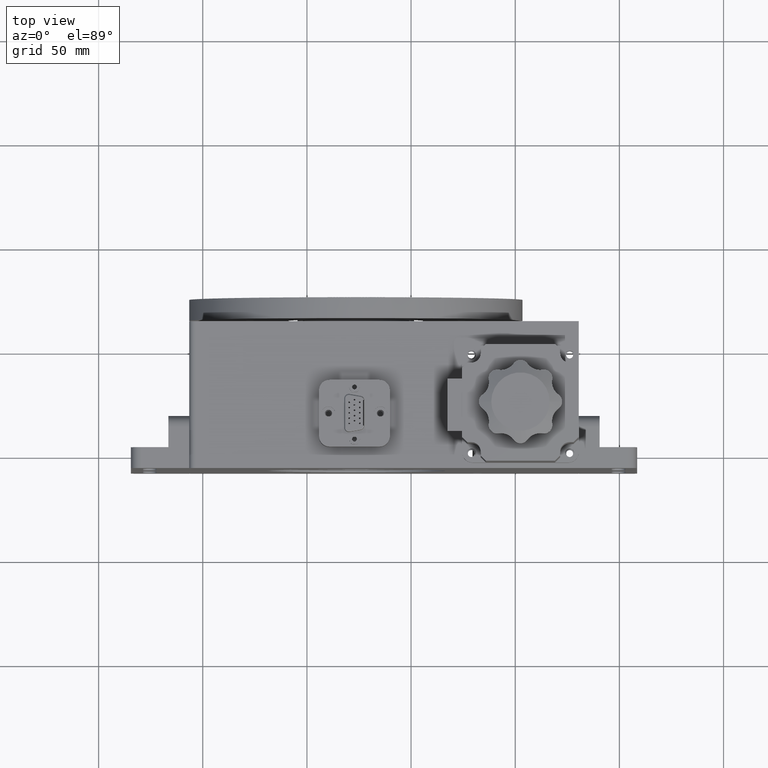
[diagram: clean part render]
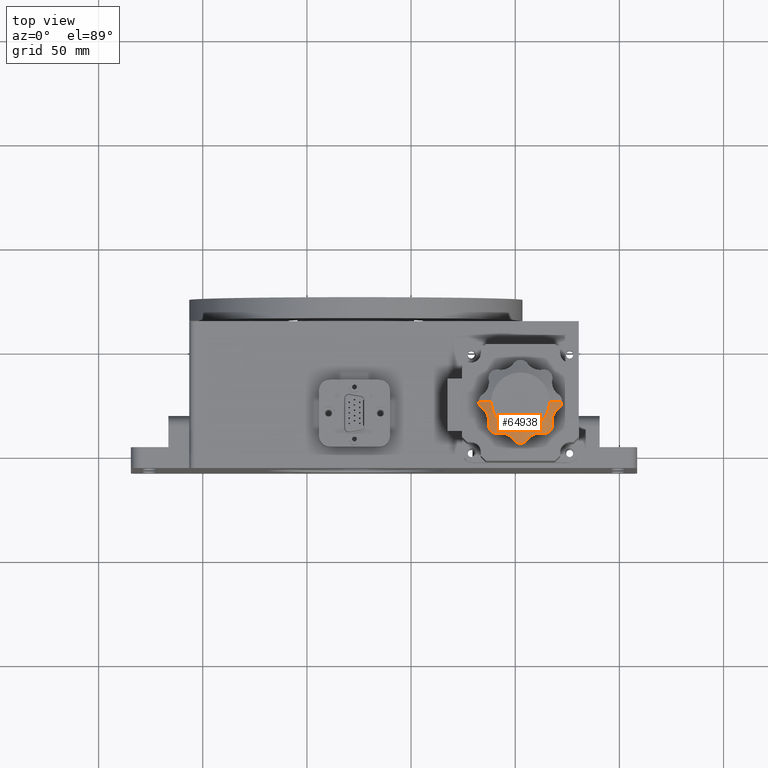
[diagram: same view with one face highlighted and labeled with its STEP entity id]
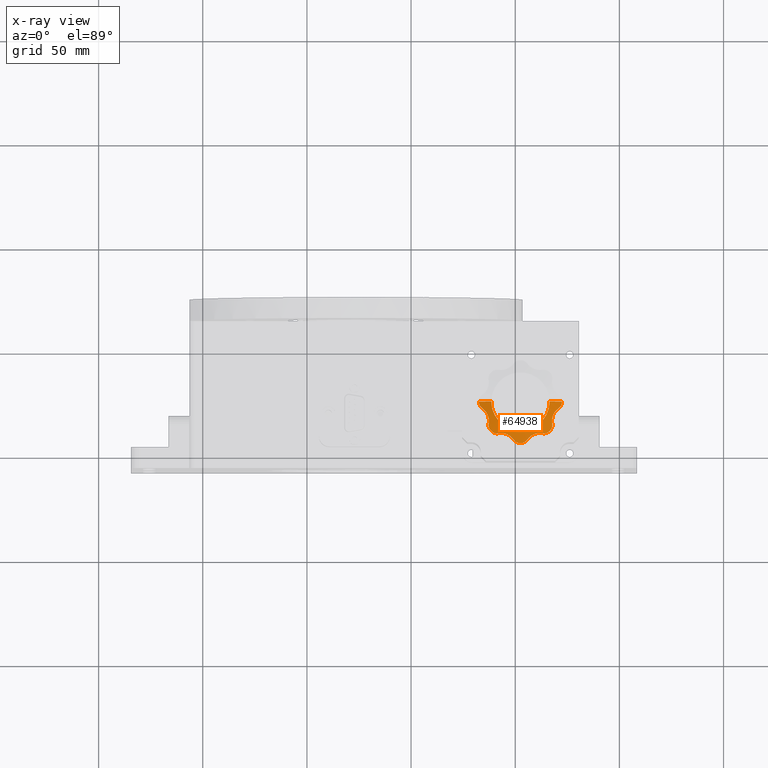
[diagram: x-ray of the same camera — body ghosted, the highlighted face saturated]
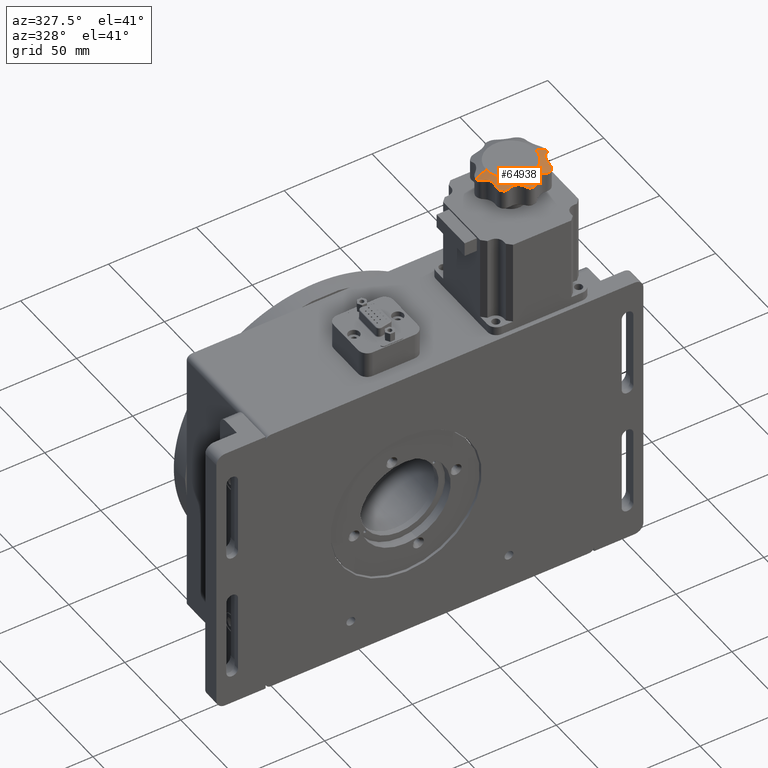
[diagram: same view with one face highlighted and labeled with its STEP entity id]
A machine part, top view. The second image highlights one B-rep face of the part: STEP entity #64938.
The next image is the same camera in x-ray: the body ghosted, the highlighted face saturated — about 0% of this face is hidden behind the body in this view.
A second angle (auxiliary view) of the same face is appended — the face is thin or edge-on in the first view.
In plain terms, the highlighted conical surface has half-angle 63 deg.
Its self-contained STEP definition (entity closure, byte-faithful):
#84 = ORIENTED_EDGE ( 'NONE', *, *, #70561, .T. ) ;
#466 = CARTESIAN_POINT ( 'NONE',  ( 270.3281158404551000, 19.39641639276948800, 157.6680802084595100 ) ) ;
#549 = CARTESIAN_POINT ( 'NONE',  ( 250.5683469493854100, 3.466314216858679600, 156.9340889782052400 ) ) ;
#928 = B_SPLINE_CURVE_WITH_KNOTS ( 'NONE', 3,
 ( #66019, #24842, #90866, #41505, #99130, #49758 ),
 .UNSPECIFIED., .F., .F.,
 ( 4, 2, 4 ),
 ( 2.128886231745767800E-007, 0.001425860909439196000, 0.002851508930255217500 ),
 .UNSPECIFIED. ) ;
#1180 = CARTESIAN_POINT ( 'NONE',  ( 272.0336857831411500, 21.06834694938507700, 156.9340889782051800 ) ) ;
#1248 = B_SPLINE_CURVE_WITH_KNOTS ( 'NONE', 3,
 ( #24792, #16584, #99084, #49714 ),
 .UNSPECIFIED., .F., .F.,
 ( 4, 4 ),
 ( 2.128886231646564100E-007, 0.0007293649178631349200 ),
 .UNSPECIFIED. ) ;
#1417 = VERTEX_POINT ( 'NONE', #11002 ) ;
#2080 = EDGE_CURVE ( 'NONE', #30171, #84348, #89225, .T. ) ;
#2278 = CARTESIAN_POINT ( 'NONE',  ( 237.3541086075618100, 14.08724364501037500, 157.9806272895485500 ) ) ;
#2279 = CARTESIAN_POINT ( 'NONE',  ( 237.4072183333234100, 10.33045380898519400, 156.8941526861525800 ) ) ;
#2401 = DIRECTION ( 'NONE',  ( -1.000000000000000000, 1.395605930821559500E-015, 0.0000000000000000000 ) ) ;
#2973 = EDGE_CURVE ( 'NONE', #49162, #58882, #8648, .T. ) ;
#3842 = ORIENTED_EDGE ( 'NONE', *, *, #94560, .T. ) ;
#4956 = CIRCLE ( 'NONE', #17943, 19.88783151651546500 ) ;
#5450 = CARTESIAN_POINT ( 'NONE',  ( 241.6550428353375300, 7.707419607014321300, 157.3812778587599400 ) ) ;
#5538 = CARTESIAN_POINT ( 'NONE',  ( 261.4127563549890900, 7.854108607561572700, 157.9806272895485200 ) ) ;
#5674 = CARTESIAN_POINT ( 'NONE',  ( 234.0179699953486900, 19.85505542291085800, 157.3812778788825100 ) ) ;
#6301 = CARTESIAN_POINT ( 'NONE',  ( 245.3192696202594600, 7.544932438126595600, 158.2519293113119300 ) ) ;
#7551 = CARTESIAN_POINT ( 'NONE',  ( 266.4999999999999400, 22.99999999999996100, 159.8000000000000100 ) ) ;
#7715 = CARTESIAN_POINT ( 'NONE',  ( 267.8128721839294100, 11.92778674251038700, 157.3055536155509900 ) ) ;
#8348 = CARTESIAN_POINT ( 'NONE',  ( 267.6419160565792500, 14.23945443920680100, 158.0234977601906200 ) ) ;
#8458 = ORIENTED_EDGE ( 'NONE', *, *, #48317, .F. ) ;
#8648 = B_SPLINE_CURVE_WITH_KNOTS ( 'NONE', 3,
 ( #10177, #59602, #100664, #67849, #18505, #76128, #26719, #84478, #35069, #92718, #43338, #101000, #51636, #2278, #59954, #10527, #68192, #18841 ),
 .UNSPECIFIED., .F., .F.,
 ( 4, 2, 2, 2, 2, 2, 2, 2, 4 ),
 ( 2.564491608561236400E-007, 0.002139081010340450900, 0.003208493290930257100, 0.004277905571520062400, 0.004812611711814981600, 0.005347317852109899000, 0.006416730132699735600, 0.007486142413289570400, 0.008555554693879407000 ),
 .UNSPECIFIED. ) ;
#8671 = CARTESIAN_POINT ( 'NONE',  ( 237.1862915010153500, 11.68629150101510200, 157.2321513908461800 ) ) ;
#8732 = EDGE_CURVE ( 'NONE', #29404, #100746, #81324, .T. ) ;
#8770 = CARTESIAN_POINT ( 'NONE',  ( 251.4516725317936300, 3.139817424084173900, 156.8000000000000100 ) ) ;
#9414 = CARTESIAN_POINT ( 'NONE',  ( 272.3601825759157600, 21.95167253179344200, 156.8000000000000100 ) ) ;
#9954 = DIRECTION ( 'NONE',  ( 1.163031447553805800E-017, 1.979074067922844300E-017, 1.000000000000000000 ) ) ;
#10177 = CARTESIAN_POINT ( 'NONE',  ( 234.2031295973081300, 19.72518911183561500, 157.4624876279491400 ) ) ;
#10439 = VERTEX_POINT ( 'NONE', #53851 ) ;
#10527 = CARTESIAN_POINT ( 'NONE',  ( 237.3411064105323800, 13.05108196027704000, 157.6957182112121800 ) ) ;
#10528 = CARTESIAN_POINT ( 'NONE',  ( 237.7154507632943100, 9.698009686639464300, 156.8000000000000100 ) ) ;
#11002 = CARTESIAN_POINT ( 'NONE',  ( 253.5483274682062200, 3.139817424084173900, 156.8000000000000100 ) ) ;
#13437 = CARTESIAN_POINT ( 'NONE',  ( 256.6286578459161100, 5.761811970802274800, 157.9076968662359400 ) ) ;
#13668 = VERTEX_POINT ( 'NONE', #21518 ) ;
#13796 = CARTESIAN_POINT ( 'NONE',  ( 262.4489180397224600, 7.841106410532091800, 157.6957182112122400 ) ) ;
#13832 = CIRCLE ( 'NONE', #51684, 19.88783151651546500 ) ;
#14032 = EDGE_CURVE ( 'NONE', #52963, #13668, #13832, .T. ) ;
#14169 = VERTEX_POINT ( 'NONE', #79470 ) ;
#14453 = ORIENTED_EDGE ( 'NONE', *, *, #46286, .T. ) ;
#14493 = DIRECTION ( 'NONE',  ( -1.163031447553805800E-017, -1.979074067922844300E-017, -1.000000000000000000 ) ) ;
#14572 = CARTESIAN_POINT ( 'NONE',  ( 246.1552860198934200, 7.227545348177479000, 158.2715224530975600 ) ) ;
#16000 = CARTESIAN_POINT ( 'NONE',  ( 267.7534821223591700, 12.37779984988907100, 157.4624876279491200 ) ) ;
#16276 = B_SPLINE_CURVE_WITH_KNOTS ( 'NONE', 3,
 ( #95387, #30126, #87820, #38501, #96112, #46709, #104372, #55037, #5674, #63370 ),
 .UNSPECIFIED., .F., .F.,
 ( 4, 2, 2, 2, 4 ),
 ( 1.845941822922709500E-006, 0.0007127976259173474000, 0.001423749310011772100, 0.002134700994106196900, 0.002845652678200621700 ),
 .UNSPECIFIED. ) ;
#16454 = CARTESIAN_POINT ( 'NONE',  ( 253.7791599767739100, 3.202505666033148100, 156.8256971240977000 ) ) ;
#16584 = CARTESIAN_POINT ( 'NONE',  ( 237.2064402719370800, 12.14946320855016500, 157.3792437131486400 ) ) ;
#16644 = CARTESIAN_POINT ( 'NONE',  ( 267.9246518518026500, 15.70787927955915800, 158.2413483650830100 ) ) ;
#16911 = ORIENTED_EDGE ( 'NONE', *, *, #30244, .T. ) ;
#17825 = CARTESIAN_POINT ( 'NONE',  ( 270.7968704026918700, 19.72518911183567200, 157.4624876279491400 ) ) ;
#17943 = AXIS2_PLACEMENT_3D ( 'NONE', #23866, #81635, #32187 ) ;
#18505 = CARTESIAN_POINT ( 'NONE',  ( 236.1320007452000900, 17.75655400316219000, 158.1777367299795000 ) ) ;
#18841 = CARTESIAN_POINT ( 'NONE',  ( 237.2465178776408300, 12.37779984988898000, 157.4624876279491200 ) ) ;
#19587 = CARTESIAN_POINT ( 'NONE',  ( 238.4999999999999700, 23.00000000000000000, 159.8000000000000100 ) ) ;
#20554 = EDGE_CURVE ( 'NONE', #90372, #10439, #49811, .T. ) ;
#21518 = CARTESIAN_POINT ( 'NONE',  ( 232.6398174240842100, 21.95167253179350200, 156.8000000000000100 ) ) ;
#21612 = CARTESIAN_POINT ( 'NONE',  ( 239.1980096866400300, 8.215450763293841200, 156.8000000000000100 ) ) ;
#21702 = CARTESIAN_POINT ( 'NONE',  ( 257.7434459968373500, 6.632000745200027600, 158.1777367299795300 ) ) ;
#22064 = CARTESIAN_POINT ( 'NONE',  ( 263.1222001501104700, 7.746517877640557400, 157.4624876279491200 ) ) ;
#22818 = CARTESIAN_POINT ( 'NONE',  ( 246.6405601950597200, 6.991556292023289200, 158.2479042270338700 ) ) ;
#23662 = CARTESIAN_POINT ( 'NONE',  ( 267.6796206809577300, 12.79861524436923000, 157.6159028688819900 ) ) ;
#23866 = CARTESIAN_POINT ( 'NONE',  ( 252.4999999999999400, 22.99999999999997900, 156.8000000000000100 ) ) ;
#24431 = EDGE_CURVE ( 'NONE', #45550, #45501, #104597, .T. ) ;
#24675 = CARTESIAN_POINT ( 'NONE',  ( 254.4216301049006000, 3.484064295957285800, 156.9420244716242200 ) ) ;
#24792 = CARTESIAN_POINT ( 'NONE',  ( 237.2465178776408300, 12.37779984988898000, 157.4624876279491200 ) ) ;
#24842 = CARTESIAN_POINT ( 'NONE',  ( 263.5686470744148000, 7.668157594792158500, 157.2997279871319200 ) ) ;
#24852 = CARTESIAN_POINT ( 'NONE',  ( 268.2257542250001700, 16.55743076933256600, 158.2756893889788600 ) ) ;
#26695 = B_SPLINE_CURVE_WITH_KNOTS ( 'NONE', 3,
 ( #41607, #82718, #49864, #549, #58177, #8770 ),
 .UNSPECIFIED., .F., .F.,
 ( 4, 2, 4 ),
 ( 2.561101793867423200E-007, 0.001425904833248735200, 0.002851553556318083300 ),
 .UNSPECIFIED. ) ;
#26719 = CARTESIAN_POINT ( 'NONE',  ( 236.6540445331571000, 16.83165703847988900, 158.2712212983298900 ) ) ;
#26720 = CARTESIAN_POINT ( 'NONE',  ( 237.1862915010153500, 11.51702634573043400, 157.1809031888826100 ) ) ;
#26759 = CARTESIAN_POINT ( 'NONE',  ( 252.4999999999999400, 22.99999999999997900, 156.8000000000000100 ) ) ;
#26901 = DIRECTION ( 'NONE',  ( -1.000000000000000000, 1.486905836551550700E-015, 0.0000000000000000000 ) ) ;
#29404 = VERTEX_POINT ( 'NONE', #83685 ) ;
#29911 = CARTESIAN_POINT ( 'NONE',  ( 239.4055601977146900, 8.096554813315842500, 156.8256971238458000 ) ) ;
#29989 = CARTESIAN_POINT ( 'NONE',  ( 258.6683429615196700, 7.154044533156910500, 158.2712212983298300 ) ) ;
#30126 = CARTESIAN_POINT ( 'NONE',  ( 232.7025056660331500, 21.72084002322584300, 156.8256971240977300 ) ) ;
#30171 = VERTEX_POINT ( 'NONE', #93475 ) ;
#30244 = EDGE_CURVE ( 'NONE', #94276, #52963, #53176, .T. ) ;
#31118 = CARTESIAN_POINT ( 'NONE',  ( 247.2538653185763200, 6.633844164480859000, 158.1782248456928800 ) ) ;
#31821 = CARTESIAN_POINT ( 'NONE',  ( 252.4999999999999400, 22.99999999999997900, 156.8000000000000100 ) ) ;
#31875 = ORIENTED_EDGE ( 'NONE', *, *, #20554, .T. ) ;
#31975 = CARTESIAN_POINT ( 'NONE',  ( 249.2251891118359300, 4.703129597308040000, 157.4624876279491200 ) ) ;
#31995 = CARTESIAN_POINT ( 'NONE',  ( 267.6419160565791900, 13.65878121155505900, 157.8681554785692400 ) ) ;
#32187 = DIRECTION ( 'NONE',  ( -1.000000000000000000, 1.395605930821559500E-015, 0.0000000000000000000 ) ) ;
#32196 = CARTESIAN_POINT ( 'NONE',  ( 267.2845492367056900, 9.698009686639560200, 156.8000000000000100 ) ) ;
#32396 = DIRECTION ( 'NONE',  ( 0.8910065241883690100, -1.170628239925356600E-015, -0.4539904997395444700 ) ) ;
#33014 = CARTESIAN_POINT ( 'NONE',  ( 255.0039435760363900, 3.871994495727039400, 157.1045522205684800 ) ) ;
#33096 = AXIS2_PLACEMENT_3D ( 'NONE', #104569, #14493, #26901 ) ;
#33195 = CARTESIAN_POINT ( 'NONE',  ( 268.6313373298944500, 17.37017332738011500, 158.2291772330564200 ) ) ;
#33250 = CARTESIAN_POINT ( 'NONE',  ( 251.4516725317936300, 3.139817424084173900, 156.8000000000000100 ) ) ;
#34681 = CARTESIAN_POINT ( 'NONE',  ( 238.4999999999999700, 23.00000000000000000, 159.8000000000000100 ) ) ;
#35069 = CARTESIAN_POINT ( 'NONE',  ( 236.9241712139589700, 16.16361874730979100, 158.2667672571537600 ) ) ;
#35070 = CARTESIAN_POINT ( 'NONE',  ( 237.1862915010153500, 11.68629150101510200, 157.2321513908461800 ) ) ;
#35106 = DIRECTION ( 'NONE',  ( -1.000000000000000000, 1.395605930821559500E-015, 0.0000000000000000000 ) ) ;
#36274 = DIRECTION ( 'NONE',  ( 1.163031447553805800E-017, 1.979074067922844300E-017, 1.000000000000000000 ) ) ;
#36787 = B_SPLINE_CURVE_WITH_KNOTS ( 'NONE', 3,
 ( #32196, #65042, #40552, #98165, #48778, #106418, #57104, #7715, #65389, #16000 ),
 .UNSPECIFIED., .F., .F.,
 ( 4, 2, 2, 2, 4 ),
 ( 1.845941825706599700E-006, 0.0007127976189506617100, 0.001423749296075616700, 0.002134700973200572000, 0.002845652650325527100 ),
 .UNSPECIFIED. ) ;
#38269 = CARTESIAN_POINT ( 'NONE',  ( 240.0589471918461900, 7.841351847061058100, 156.9420244698525800 ) ) ;
#38356 = CARTESIAN_POINT ( 'NONE',  ( 259.3363812526897000, 7.424171213958848300, 158.2667672571537300 ) ) ;
#38501 = CARTESIAN_POINT ( 'NONE',  ( 232.9840642959574100, 21.07836989509897700, 156.9420244716242800 ) ) ;
#39132 = CARTESIAN_POINT ( 'NONE',  ( 242.5467025509394400, 7.863923557910202300, 157.7063472167102400 ) ) ;
#39491 = CARTESIAN_POINT ( 'NONE',  ( 248.0925080336171800, 5.987966939783357000, 157.9806272532480900 ) ) ;
#39594 = FACE_OUTER_BOUND ( 'NONE', #100859, .T. ) ;
#40182 = DIRECTION ( 'NONE',  ( -1.000000000000000000, 1.395605930821559500E-015, 0.0000000000000000000 ) ) ;
#40552 = CARTESIAN_POINT ( 'NONE',  ( 267.5014561823628600, 10.11945291401769600, 156.8593759180045900 ) ) ;
#41339 = CARTESIAN_POINT ( 'NONE',  ( 255.4985986984276600, 4.342927178751427400, 157.3055536226903800 ) ) ;
#41505 = CARTESIAN_POINT ( 'NONE',  ( 264.9465167809883600, 7.821713293055509600, 156.9340889378582900 ) ) ;
#41518 = CARTESIAN_POINT ( 'NONE',  ( 269.1242405794952200, 18.11508061880188300, 158.1059522471157100 ) ) ;
#41607 = CARTESIAN_POINT ( 'NONE',  ( 249.2251891118359300, 4.703129597308040000, 157.4624876279491200 ) ) ;
#42676 = ORIENTED_EDGE ( 'NONE', *, *, #81488, .T. ) ;
#43230 = CARTESIAN_POINT ( 'NONE',  ( 255.7748108881641300, 4.703129597308032900, 157.4624876279491200 ) ) ;
#43338 = CARTESIAN_POINT ( 'NONE',  ( 237.0869973284470400, 15.65260713818909400, 158.2338197077304200 ) ) ;
#43339 = CARTESIAN_POINT ( 'NONE',  ( 237.1969872600750200, 11.34664911320746600, 157.1329612935858800 ) ) ;
#43477 = AXIS2_PLACEMENT_3D ( 'NONE', #26759, #84519, #35106 ) ;
#43527 = VERTEX_POINT ( 'NONE', #48814 ) ;
#43855 = ORIENTED_EDGE ( 'NONE', *, *, #57685, .T. ) ;
#45129 = EDGE_CURVE ( 'NONE', #84348, #14169, #36787, .T. ) ;
#45492 = CIRCLE ( 'NONE', #101796, 19.88783151651546500 ) ;
#45501 = VERTEX_POINT ( 'NONE', #63843 ) ;
#45550 = VERTEX_POINT ( 'NONE', #56971 ) ;
#46286 = EDGE_CURVE ( 'NONE', #13668, #49162, #16276, .T. ) ;
#46415 = CARTESIAN_POINT ( 'NONE',  ( 272.3601825759157600, 21.95167253179344200, 156.8000000000000100 ) ) ;
#46474 = CARTESIAN_POINT ( 'NONE',  ( 240.7450130639794300, 7.703902116893528000, 157.1045522164380400 ) ) ;
#46568 = CARTESIAN_POINT ( 'NONE',  ( 259.8473928618104200, 7.586997328446891200, 158.2338197077304800 ) ) ;
#46709 = CARTESIAN_POINT ( 'NONE',  ( 233.3719944957271100, 20.49605642396333800, 157.1045522205684800 ) ) ;
#47348 = CARTESIAN_POINT ( 'NONE',  ( 241.8777998498896400, 7.746517877640456200, 157.4624876279491200 ) ) ;
#47710 = CARTESIAN_POINT ( 'NONE',  ( 248.8159912510279800, 5.246095789160035500, 157.6957180678858800 ) ) ;
#48317 = EDGE_CURVE ( 'NONE', #92203, #43527, #94257, .T. ) ;
#48778 = CARTESIAN_POINT ( 'NONE',  ( 267.7180613030787400, 10.78619092501263100, 156.9914101614185100 ) ) ;
#48814 = CARTESIAN_POINT ( 'NONE',  ( 272.3878315165154600, 22.99999999999995400, 156.8000000000000100 ) ) ;
#49162 = VERTEX_POINT ( 'NONE', #81623 ) ;
#49353 = VERTEX_POINT ( 'NONE', #8671 ) ;
#49589 = CARTESIAN_POINT ( 'NONE',  ( 255.7748108881641300, 4.703129597308032900, 157.4624876279491200 ) ) ;
#49714 = CARTESIAN_POINT ( 'NONE',  ( 237.1862915010153500, 11.68629150101510200, 157.2321513908461800 ) ) ;
#49758 = CARTESIAN_POINT ( 'NONE',  ( 265.8019903133600200, 8.215450763293974400, 156.8000000000000400 ) ) ;
#49771 = CARTESIAN_POINT ( 'NONE',  ( 269.8966530124957300, 19.01410846094755800, 157.8435970462970200 ) ) ;
#49811 = B_SPLINE_CURVE_WITH_KNOTS ( 'NONE', 3,
 ( #86964, #54172, #13437, #71114, #21702, #79424, #29989, #87685, #38356, #95962, #46568, #104236, #54895, #5538, #63231, #13796, #71472, #22064 ),
 .UNSPECIFIED., .F., .F.,
 ( 4, 2, 2, 2, 2, 2, 2, 2, 4 ),
 ( 2.564491608478363300E-007, 0.002139081010340392700, 0.003208493290930166000, 0.004277905571519939300, 0.004812611711814826300, 0.005347317852109714300, 0.006416730132699479700, 0.007486142413289243400, 0.008555554693879008000 ),
 .UNSPECIFIED. ) ;
#49864 = CARTESIAN_POINT ( 'NONE',  ( 249.8060727253907200, 4.006511306011021600, 157.1610719225173500 ) ) ;
#49975 = B_SPLINE_CURVE_WITH_KNOTS ( 'NONE', 3,
 ( #81070, #23662, #81426, #31995 ),
 .UNSPECIFIED., .F., .F.,
 ( 4, 4 ),
 ( 2.131679597239768000E-007, 0.001345775553808589500 ),
 .UNSPECIFIED. ) ;
#50521 = CARTESIAN_POINT ( 'NONE',  ( 271.4934886939890400, 20.30607272539037200, 157.1610719225173200 ) ) ;
#51083 = EDGE_CURVE ( 'NONE', #106020, #58358, #84290, .T. ) ;
#51199 = EDGE_CURVE ( 'NONE', #58358, #53309, #26695, .T. ) ;
#51636 = CARTESIAN_POINT ( 'NONE',  ( 237.2798059235926200, 14.78953390261069400, 158.1234121039777800 ) ) ;
#51637 = CARTESIAN_POINT ( 'NONE',  ( 237.2747135140966700, 10.83219541992859400, 157.0029685174676200 ) ) ;
#51684 = AXIS2_PLACEMENT_3D ( 'NONE', #101123, #51751, #2401 ) ;
#51751 = DIRECTION ( 'NONE',  ( 1.163031447553805800E-017, 1.979074067922844300E-017, 1.000000000000000000 ) ) ;
#52720 = EDGE_CURVE ( 'NONE', #1417, #90372, #55818, .T. ) ;
#52963 = VERTEX_POINT ( 'NONE', #94913 ) ;
#53176 = LINE ( 'NONE', #19587, #69907 ) ;
#53235 = AXIS2_PLACEMENT_3D ( 'NONE', #85623, #36274, #93891 ) ;
#53309 = VERTEX_POINT ( 'NONE', #33250 ) ;
#53851 = CARTESIAN_POINT ( 'NONE',  ( 263.1222001501104700, 7.746517877640557400, 157.4624876279491200 ) ) ;
#54141 = CARTESIAN_POINT ( 'NONE',  ( 241.8777998498896400, 7.746517877640456200, 157.4624876279491200 ) ) ;
#54172 = CARTESIAN_POINT ( 'NONE',  ( 256.1647778136537600, 5.259133075833077000, 157.7063469930233700 ) ) ;
#54803 = CARTESIAN_POINT ( 'NONE',  ( 241.4277867425109000, 7.687127816070410600, 157.3055536155510200 ) ) ;
#54895 = CARTESIAN_POINT ( 'NONE',  ( 260.7104660973888000, 7.779805923592438600, 158.1234121039777000 ) ) ;
#55011 = CARTESIAN_POINT ( 'NONE',  ( 267.2845492367056900, 9.698009686639560200, 156.8000000000000100 ) ) ;
#55037 = CARTESIAN_POINT ( 'NONE',  ( 233.8429271787515200, 20.00140130157203100, 157.3055536226904100 ) ) ;
#55674 = CARTESIAN_POINT ( 'NONE',  ( 244.6337535278848100, 7.718400398364468500, 158.1777368135645900 ) ) ;
#55818 = B_SPLINE_CURVE_WITH_KNOTS ( 'NONE', 3,
 ( #65847, #16454, #74077, #24675, #82441, #33014, #90693, #41339, #98959, #49589 ),
 .UNSPECIFIED., .F., .F.,
 ( 4, 2, 2, 2, 4 ),
 ( 1.845941822919220800E-006, 0.0007127976259173369900, 0.001423749310011754700, 0.002134700994106173000, 0.002845652678200591300 ),
 .UNSPECIFIED. ) ;
#56009 = CIRCLE ( 'NONE', #53235, 13.99999999999998400 ) ;
#56029 = CARTESIAN_POINT ( 'NONE',  ( 249.2251891118359300, 4.703129597308040000, 157.4624876279491200 ) ) ;
#56971 = CARTESIAN_POINT ( 'NONE',  ( 237.7154507632943100, 9.698009686639464300, 156.8000000000000100 ) ) ;
#57104 = CARTESIAN_POINT ( 'NONE',  ( 267.8144938768039100, 11.47334434495738600, 157.1674099899103400 ) ) ;
#57379 = CARTESIAN_POINT ( 'NONE',  ( 267.6419160565791900, 13.65878121155505900, 157.8681554785692400 ) ) ;
#57685 = EDGE_CURVE ( 'NONE', #10439, #30171, #928, .T. ) ;
#58093 = CARTESIAN_POINT ( 'NONE',  ( 270.7968704026918700, 19.72518911183567200, 157.4624876279491400 ) ) ;
#58177 = CARTESIAN_POINT ( 'NONE',  ( 250.9888894286443400, 3.265497551723777600, 156.8515187176439800 ) ) ;
#58358 = VERTEX_POINT ( 'NONE', #31975 ) ;
#58601 = EDGE_CURVE ( 'NONE', #94276, #92203, #56009, .T. ) ;
#58821 = CARTESIAN_POINT ( 'NONE',  ( 272.2345024482762600, 21.48888942864401500, 156.8515187176439600 ) ) ;
#58882 = VERTEX_POINT ( 'NONE', #89181 ) ;
#59385 = CARTESIAN_POINT ( 'NONE',  ( 252.4999999999999400, 22.99999999999997900, 156.8000000000000100 ) ) ;
#59602 = CARTESIAN_POINT ( 'NONE',  ( 234.7591330758330100, 19.33522218634577100, 157.7063469930233200 ) ) ;
#59954 = CARTESIAN_POINT ( 'NONE',  ( 237.3656221684113900, 13.73762914353432800, 157.8936132756212200 ) ) ;
#59955 = CARTESIAN_POINT ( 'NONE',  ( 237.5380400320450500, 10.00770642523899800, 156.8383439934944500 ) ) ;
#62119 = EDGE_CURVE ( 'NONE', #14169, #29404, #49975, .T. ) ;
#63144 = CARTESIAN_POINT ( 'NONE',  ( 241.8777998498896400, 7.746517877640456200, 157.4624876279491200 ) ) ;
#63231 = CARTESIAN_POINT ( 'NONE',  ( 261.7623708564652200, 7.865622168411155400, 157.8936132756212500 ) ) ;
#63370 = CARTESIAN_POINT ( 'NONE',  ( 234.2031295973081300, 19.72518911183561500, 157.4624876279491400 ) ) ;
#63630 = ORIENTED_EDGE ( 'NONE', *, *, #24431, .T. ) ;
#63843 = CARTESIAN_POINT ( 'NONE',  ( 239.1980096866400300, 8.215450763293841200, 156.8000000000000100 ) ) ;
#63986 = CARTESIAN_POINT ( 'NONE',  ( 245.6568951656285000, 7.433540071212283000, 158.2712213111370800 ) ) ;
#64527 = B_SPLINE_CURVE_WITH_KNOTS ( 'NONE', 3,
 ( #21612, #29911, #87585, #38269, #95873, #46474, #104144, #54803, #5450, #63144 ),
 .UNSPECIFIED., .F., .F.,
 ( 4, 2, 2, 2, 4 ),
 ( 1.845941825698996500E-006, 0.0007127976189506741700, 0.001423749296075649200, 0.002134700973200624500, 0.002845652650325599500 ),
 .UNSPECIFIED. ) ;
#64938 = ADVANCED_FACE ( 'NONE', ( #39594 ), #73046, .T. ) ;
#65042 = CARTESIAN_POINT ( 'NONE',  ( 267.4034451866838300, 9.905560197714232000, 156.8256971238456900 ) ) ;
#65389 = CARTESIAN_POINT ( 'NONE',  ( 267.7925803929854900, 12.15504283533700800, 157.3812778587598300 ) ) ;
#65847 = CARTESIAN_POINT ( 'NONE',  ( 253.5483274682062200, 3.139817424084173900, 156.8000000000000100 ) ) ;
#66019 = CARTESIAN_POINT ( 'NONE',  ( 263.1222001501104700, 7.746517877640557400, 157.4624876279491200 ) ) ;
#66030 = CARTESIAN_POINT ( 'NONE',  ( 267.7124330292085100, 14.83985912540859800, 158.1424863418963000 ) ) ;
#67630 = DIRECTION ( 'NONE',  ( -1.000000000000000000, 1.395605930821559500E-015, 0.0000000000000000000 ) ) ;
#67849 = CARTESIAN_POINT ( 'NONE',  ( 235.9288940871960800, 18.04765497597822200, 158.1225106727057200 ) ) ;
#68192 = CARTESIAN_POINT ( 'NONE',  ( 237.3052455625147300, 12.71239274989480900, 157.5844690265437600 ) ) ;
#68451 = ORIENTED_EDGE ( 'NONE', *, *, #8732, .T. ) ;
#69136 = B_SPLINE_CURVE_WITH_KNOTS ( 'NONE', 3,
 ( #35070, #26720, #43339, #101001, #51637, #2279, #59955, #10528 ),
 .UNSPECIFIED., .F., .F.,
 ( 4, 2, 2, 4 ),
 ( 0.0007293649178631349200, 0.001259900920961140900, 0.001790436924059146800, 0.002851508930255163700 ),
 .UNSPECIFIED. ) ;
#69726 = VECTOR ( 'NONE', #32396, 1000.000000000000100 ) ;
#69907 = VECTOR ( 'NONE', #85551, 1000.000000000000100 ) ;
#70561 = EDGE_CURVE ( 'NONE', #45501, #106020, #64527, .T. ) ;
#70887 = ORIENTED_EDGE ( 'NONE', *, *, #14032, .T. ) ;
#71114 = CARTESIAN_POINT ( 'NONE',  ( 257.4523450240212100, 6.428894087195995900, 158.1225106727056900 ) ) ;
#71472 = CARTESIAN_POINT ( 'NONE',  ( 262.7876072501046600, 7.805245562514454800, 157.5844690265437600 ) ) ;
#71517 = CARTESIAN_POINT ( 'NONE',  ( 243.2301630236814000, 7.891358325121508700, 157.9076970187258600 ) ) ;
#71523 = ORIENTED_EDGE ( 'NONE', *, *, #52720, .T. ) ;
#72224 = CARTESIAN_POINT ( 'NONE',  ( 246.3202776612767200, 7.152174172958628300, 158.2667672483696300 ) ) ;
#73046 = CONICAL_SURFACE ( 'NONE', #33096, 13.99999999999998400, 1.099557428756430000 ) ;
#73378 = ORIENTED_EDGE ( 'NONE', *, *, #2080, .T. ) ;
#73621 = ORIENTED_EDGE ( 'NONE', *, *, #62119, .T. ) ;
#74077 = CARTESIAN_POINT ( 'NONE',  ( 253.9997092086567200, 3.284446417491309100, 156.8593759186634900 ) ) ;
#74254 = CARTESIAN_POINT ( 'NONE',  ( 268.0129162508831700, 15.99356804437571200, 158.2616876282444300 ) ) ;
#76128 = CARTESIAN_POINT ( 'NONE',  ( 236.4940734309347800, 17.14916071202334200, 158.2519292569572500 ) ) ;
#76321 = AXIS2_PLACEMENT_3D ( 'NONE', #31821, #89514, #40182 ) ;
#76635 = ORIENTED_EDGE ( 'NONE', *, *, #84784, .T. ) ;
#76837 = ORIENTED_EDGE ( 'NONE', *, *, #51083, .T. ) ;
#79424 = CARTESIAN_POINT ( 'NONE',  ( 258.3508392879761600, 6.994073430934733400, 158.2519292569573100 ) ) ;
#79470 = CARTESIAN_POINT ( 'NONE',  ( 267.7534821223591700, 12.37779984988907100, 157.4624876279491200 ) ) ;
#80554 = CARTESIAN_POINT ( 'NONE',  ( 246.7967531181389500, 6.905969689927237800, 158.2338196571571400 ) ) ;
#81070 = CARTESIAN_POINT ( 'NONE',  ( 267.7534821223591700, 12.37779984988907100, 157.4624876279491200 ) ) ;
#81324 = B_SPLINE_CURVE_WITH_KNOTS ( 'NONE', 3,
 ( #57379, #8348, #66030, #16644, #74254, #24852, #82620, #33195, #90881, #41518, #99143, #49771, #466, #58093 ),
 .UNSPECIFIED., .F., .F.,
 ( 4, 2, 2, 2, 2, 2, 4 ),
 ( 0.001345775553808589500, 0.003148209549154206800, 0.004049426546827010800, 0.004950643544499814400, 0.005851860542172618800, 0.006753077539845422400, 0.008555511535191136200 ),
 .UNSPECIFIED. ) ;
#81426 = CARTESIAN_POINT ( 'NONE',  ( 267.6419160565791900, 13.22529401834009400, 157.7521885518349600 ) ) ;
#81488 = EDGE_CURVE ( 'NONE', #100746, #88083, #97278, .T. ) ;
#81623 = CARTESIAN_POINT ( 'NONE',  ( 234.2031295973081300, 19.72518911183561500, 157.4624876279491400 ) ) ;
#81635 = DIRECTION ( 'NONE',  ( 1.163031447553805800E-017, 1.979074067922844300E-017, 1.000000000000000000 ) ) ;
#82217 = CARTESIAN_POINT ( 'NONE',  ( 266.4999999999999400, 22.99999999999995700, 159.8000000000000100 ) ) ;
#82441 = CARTESIAN_POINT ( 'NONE',  ( 254.6243271327882700, 3.602738441091807500, 156.9914101639428700 ) ) ;
#82620 = CARTESIAN_POINT ( 'NONE',  ( 268.3514672257395000, 16.83720387912066800, 158.2690261800601700 ) ) ;
#82718 = CARTESIAN_POINT ( 'NONE',  ( 249.4854653671178000, 4.332035297112297700, 157.2997281778311800 ) ) ;
#83685 = CARTESIAN_POINT ( 'NONE',  ( 267.6419160565791900, 13.65878121155505900, 157.8681554785692400 ) ) ;
#84290 = B_SPLINE_CURVE_WITH_KNOTS ( 'NONE', 3,
 ( #47348, #39132, #71517, #105003, #55674, #6301, #63986, #14572, #72224, #22818, #80554, #31118, #88819, #39491, #97120, #47710, #105370, #56029 ),
 .UNSPECIFIED., .F., .F.,
 ( 4, 2, 2, 2, 2, 2, 2, 2, 4 ),
 ( 2.131679597202853500E-007, 0.002139037759767450200, 0.003208450055671315900, 0.004277862351575180800, 0.004812568499527113800, 0.005347274647479046000, 0.006416686943382981500, 0.007486099239286917100, 0.008555511535190851700 ),
 .UNSPECIFIED. ) ;
#84348 = VERTEX_POINT ( 'NONE', #55011 ) ;
#84478 = CARTESIAN_POINT ( 'NONE',  ( 236.8608000076688700, 16.33358083552227700, 158.2715224592072600 ) ) ;
#84519 = DIRECTION ( 'NONE',  ( 1.163031447553805800E-017, 1.979074067922844300E-017, 1.000000000000000000 ) ) ;
#84784 = EDGE_CURVE ( 'NONE', #53309, #1417, #4956, .T. ) ;
#85551 = DIRECTION ( 'NONE',  ( -0.8910065241883690100, 1.261775452209668600E-015, -0.4539904997395444700 ) ) ;
#85623 = CARTESIAN_POINT ( 'NONE',  ( 252.4999999999999400, 22.99999999999997900, 159.8000000000000100 ) ) ;
#86964 = CARTESIAN_POINT ( 'NONE',  ( 255.7748108881641300, 4.703129597308032900, 157.4624876279491200 ) ) ;
#87239 = ORIENTED_EDGE ( 'NONE', *, *, #51199, .T. ) ;
#87585 = CARTESIAN_POINT ( 'NONE',  ( 239.6194529140182700, 7.998543817636922300, 156.8593759180047000 ) ) ;
#87685 = CARTESIAN_POINT ( 'NONE',  ( 259.1664191644771900, 7.360800007668722800, 158.2715224592072600 ) ) ;
#87820 = CARTESIAN_POINT ( 'NONE',  ( 232.7844464174914700, 21.50029079134296200, 156.8593759186635700 ) ) ;
#88083 = VERTEX_POINT ( 'NONE', #46415 ) ;
#88819 = CARTESIAN_POINT ( 'NONE',  ( 247.5433742773960500, 6.432020948663361700, 158.1234119966748900 ) ) ;
#89181 = CARTESIAN_POINT ( 'NONE',  ( 237.2465178776408300, 12.37779984988898000, 157.4624876279491200 ) ) ;
#89225 = CIRCLE ( 'NONE', #76321, 19.88783151651546500 ) ;
#89514 = DIRECTION ( 'NONE',  ( 1.163031447553805800E-017, 1.979074067922844300E-017, 1.000000000000000000 ) ) ;
#90372 = VERTEX_POINT ( 'NONE', #43230 ) ;
#90614 = ORIENTED_EDGE ( 'NONE', *, *, #99170, .T. ) ;
#90693 = CARTESIAN_POINT ( 'NONE',  ( 255.1784061060523600, 4.020441163075990900, 157.1674099949588600 ) ) ;
#90866 = CARTESIAN_POINT ( 'NONE',  ( 264.0255291785792300, 7.664680961827035500, 157.1610722483293900 ) ) ;
#90881 = CARTESIAN_POINT ( 'NONE',  ( 268.7860871375226000, 17.62557803211629100, 158.1962144957780100 ) ) ;
#91615 = CARTESIAN_POINT ( 'NONE',  ( 270.7968704026918700, 19.72518911183567200, 157.4624876279491400 ) ) ;
#92203 = VERTEX_POINT ( 'NONE', #82217 ) ;
#92718 = CARTESIAN_POINT ( 'NONE',  ( 237.0370711243111000, 15.82357101171865200, 158.2479042614596700 ) ) ;
#93475 = CARTESIAN_POINT ( 'NONE',  ( 265.8019903133600200, 8.215450763293974400, 156.8000000000000400 ) ) ;
#93891 = DIRECTION ( 'NONE',  ( -1.000000000000000000, 1.486905836551550700E-015, 0.0000000000000000000 ) ) ;
#94257 = LINE ( 'NONE', #7551, #69726 ) ;
#94276 = VERTEX_POINT ( 'NONE', #34681 ) ;
#94560 = EDGE_CURVE ( 'NONE', #58882, #49353, #1248, .T. ) ;
#94913 = CARTESIAN_POINT ( 'NONE',  ( 232.6121684834844800, 23.00000000000000700, 156.8000000000000100 ) ) ;
#95387 = CARTESIAN_POINT ( 'NONE',  ( 232.6398174240842100, 21.95167253179350200, 156.8000000000000100 ) ) ;
#95873 = CARTESIAN_POINT ( 'NONE',  ( 240.2861909250131300, 7.781938696920986900, 156.9914101614186000 ) ) ;
#95962 = CARTESIAN_POINT ( 'NONE',  ( 259.6764289882809700, 7.537071124311078800, 158.2479042614597500 ) ) ;
#96112 = CARTESIAN_POINT ( 'NONE',  ( 233.1027384410919300, 20.87567286721145600, 156.9914101639429000 ) ) ;
#97120 = CARTESIAN_POINT ( 'NONE',  ( 248.3478644254525100, 5.748893192518893100, 157.8936131362179100 ) ) ;
#97278 = B_SPLINE_CURVE_WITH_KNOTS ( 'NONE', 3,
 ( #91615, #99900, #50521, #1180, #58821, #9414 ),
 .UNSPECIFIED., .F., .F.,
 ( 4, 2, 4 ),
 ( 2.561101793497198400E-007, 0.001425904833248680500, 0.002851553556318011300 ),
 .UNSPECIFIED. ) ;
#97768 = ORIENTED_EDGE ( 'NONE', *, *, #58601, .F. ) ;
#98165 = CARTESIAN_POINT ( 'NONE',  ( 267.6586481529386100, 10.55894719184564900, 156.9420244698524700 ) ) ;
#98959 = CARTESIAN_POINT ( 'NONE',  ( 255.6449445770889200, 4.517969995348584800, 157.3812778788824600 ) ) ;
#99084 = CARTESIAN_POINT ( 'NONE',  ( 237.1862915010153500, 11.91892421723932900, 157.3025853109542100 ) ) ;
#99130 = CARTESIAN_POINT ( 'NONE',  ( 265.3858842057072700, 7.977083097009082000, 156.8515186887565300 ) ) ;
#99143 = CARTESIAN_POINT ( 'NONE',  ( 269.3089728747897300, 18.35061050871377500, 158.0481759545137900 ) ) ;
#99170 = EDGE_CURVE ( 'NONE', #88083, #43527, #45492, .T. ) ;
#99478 = ORIENTED_EDGE ( 'NONE', *, *, #45129, .T. ) ;
#99900 = CARTESIAN_POINT ( 'NONE',  ( 271.1679647028876200, 19.98546536711738900, 157.2997281778311800 ) ) ;
#100613 = ORIENTED_EDGE ( 'NONE', *, *, #2973, .T. ) ;
#100664 = CARTESIAN_POINT ( 'NONE',  ( 235.2618119708024000, 18.87134215408347900, 157.9076968662359700 ) ) ;
#100746 = VERTEX_POINT ( 'NONE', #17825 ) ;
#100859 = EDGE_LOOP ( 'NONE', ( #8458, #97768, #16911, #70887, #14453, #100613, #3842, #105928, #63630, #84, #76837, #87239, #76635, #71523, #31875, #43855, #73378, #99478, #73621, #68451, #42676, #90614 ) ) ;
#101000 = CARTESIAN_POINT ( 'NONE',  ( 237.2178026816140700, 15.13695829397430100, 158.1782249368032800 ) ) ;
#101001 = CARTESIAN_POINT ( 'NONE',  ( 237.2411847295716100, 11.00362185888309500, 157.0438062084029400 ) ) ;
#101123 = CARTESIAN_POINT ( 'NONE',  ( 252.4999999999999400, 22.99999999999997900, 156.8000000000000100 ) ) ;
#101796 = AXIS2_PLACEMENT_3D ( 'NONE', #59385, #9954, #67630 ) ;
#104144 = CARTESIAN_POINT ( 'NONE',  ( 240.9733443449578900, 7.685506123195829700, 157.1674099899104200 ) ) ;
#104236 = CARTESIAN_POINT ( 'NONE',  ( 260.3630417060252300, 7.717802681613879800, 158.1782249368033300 ) ) ;
#104372 = CARTESIAN_POINT ( 'NONE',  ( 233.5204411630761000, 20.32159389394745100, 157.1674099949589700 ) ) ;
#104569 = CARTESIAN_POINT ( 'NONE',  ( 252.4999999999999400, 22.99999999999997900, 159.8000000000000100 ) ) ;
#104597 = CIRCLE ( 'NONE', #43477, 19.88783151651546500 ) ;
#105003 = CARTESIAN_POINT ( 'NONE',  ( 244.2842952010141500, 7.780621902008372900, 158.1225106314464600 ) ) ;
#105370 = CARTESIAN_POINT ( 'NONE',  ( 249.0301231126177000, 4.981249014669034900, 157.5844689233043100 ) ) ;
#105928 = ORIENTED_EDGE ( 'NONE', *, *, #106581, .T. ) ;
#106020 = VERTEX_POINT ( 'NONE', #54141 ) ;
#106418 = CARTESIAN_POINT ( 'NONE',  ( 267.7960978831062000, 11.24501306397889700, 157.1045522164379500 ) ) ;
#106581 = EDGE_CURVE ( 'NONE', #49353, #45550, #69136, .T. ) ;